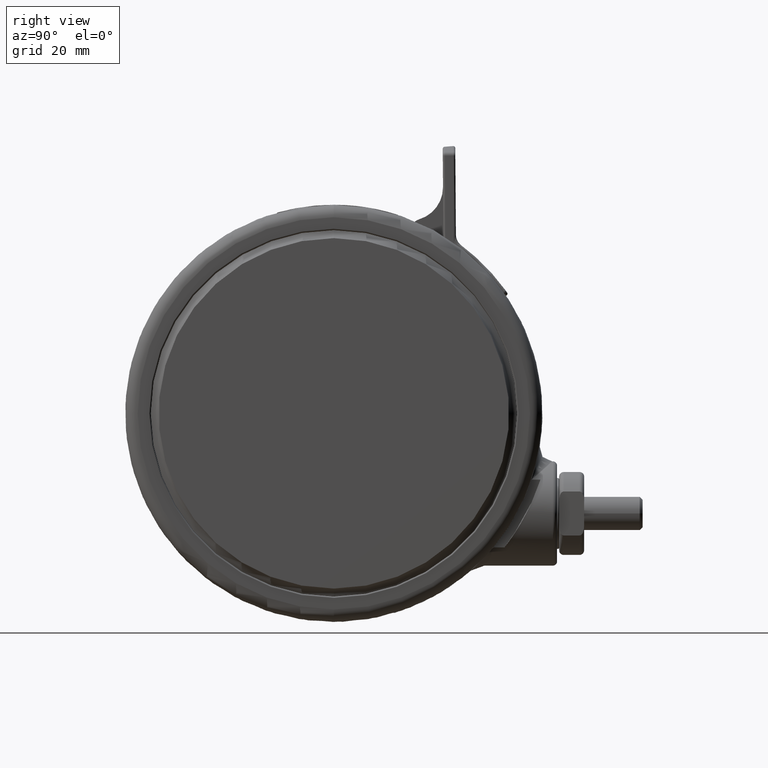
[diagram: clean part render]
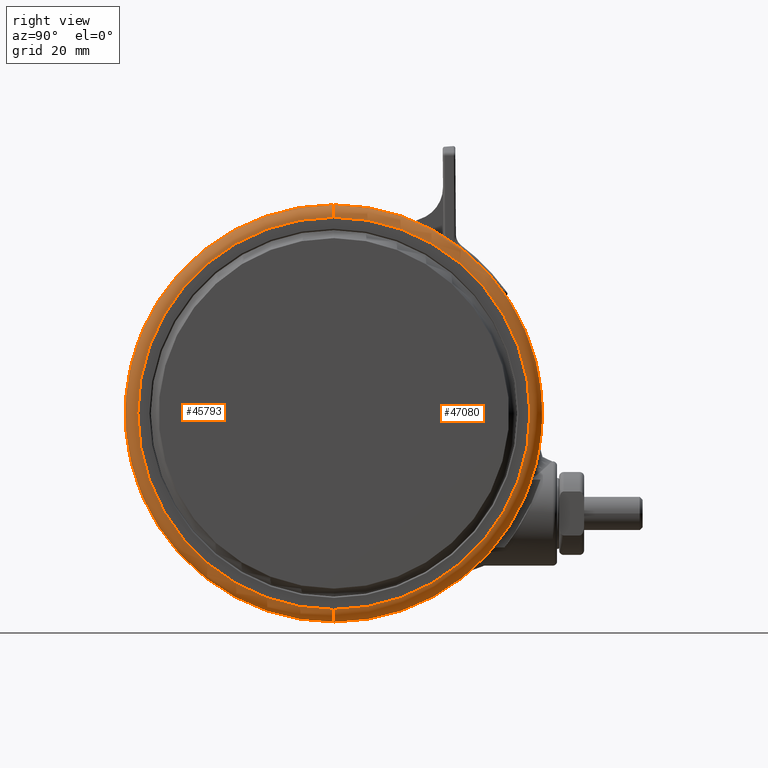
[diagram: same view with one multi-face feature highlighted, each face labeled with its STEP entity id]
A machine part, right view. The highlighted faces form ONE feature: a constant-radius fillet chain: 2 tangent blend faces with common blend radius 3 mm. The faces share edges in the B-rep.
Their STEP definitions:
[1] entity #47080 (Torus):
#1292 = DIRECTION ( 'NONE',  ( 1.000000000000000000, 1.509229262741580400E-016, -1.734723475976807100E-017 ) ) ;
#2541 = FACE_OUTER_BOUND ( 'NONE', #37555, .T. ) ;
#2886 = VERTEX_POINT ( 'NONE', #22910 ) ;
#5930 = CIRCLE ( 'NONE', #26868, 47.00000000000000000 ) ;
#8068 = DIRECTION ( 'NONE',  ( -2.126349141558171900E-017, -1.337754666183254700E-016, -1.000000000000000000 ) ) ;
#8136 = CARTESIAN_POINT ( 'NONE',  ( -47.00000000000001400, -1.151582041475614100E-014, -5.099999999999827300 ) ) ;
#9271 = CARTESIAN_POINT ( 'NONE',  ( 46.99999999999998600, 8.426774611007273000E-015, -5.099999999999829100 ) ) ;
#9528 = CARTESIAN_POINT ( 'NONE',  ( -1.387778780781445700E-014, 1.734723475976807100E-015, -2.099999999999938800 ) ) ;
#11946 = DIRECTION ( 'NONE',  ( 1.000000000000000000, 2.733876061888929400E-016, 0.0000000000000000000 ) ) ;
#12018 = CIRCLE ( 'NONE', #20941, 3.000000000000002700 ) ;
#13105 = DIRECTION ( 'NONE',  ( -1.000000000000000000, -1.509229262741580100E-016, 0.0000000000000000000 ) ) ;
#13363 = DIRECTION ( 'NONE',  ( 1.000000000000000000, 1.509229262741580100E-016, -1.845450506358305400E-017 ) ) ;
#14648 = VERTEX_POINT ( 'NONE', #35803 ) ;
#16893 = EDGE_CURVE ( 'NONE', #17087, #14648, #21951, .T. ) ;
#17087 = VERTEX_POINT ( 'NONE', #31935 ) ;
#19356 = CARTESIAN_POINT ( 'NONE',  ( -1.394157828206119900E-014, 1.333397076121845300E-015, -5.099999999999828200 ) ) ;
#20941 = AXIS2_PLACEMENT_3D ( 'NONE', #9271, #35710, #13105 ) ;
#21197 = CIRCLE ( 'NONE', #36047, 50.00000000000000000 ) ;
#21951 = CIRCLE ( 'NONE', #31886, 3.000000000000002700 ) ;
#22614 = TOROIDAL_SURFACE ( 'NONE', #25742, 47.00000000000000000, 3.000000000000000000 ) ;
#22910 = CARTESIAN_POINT ( 'NONE',  ( 46.99999999999998600, 8.828101010862234300E-015, -2.099999999999939700 ) ) ;
#23908 = DIRECTION ( 'NONE',  ( -2.126349141558171900E-017, -1.337754666183254700E-016, -1.000000000000000000 ) ) ;
#25742 = AXIS2_PLACEMENT_3D ( 'NONE', #19356, #8068, #38346 ) ;
#25926 = ORIENTED_EDGE ( 'NONE', *, *, #31596, .F. ) ;
#26868 = AXIS2_PLACEMENT_3D ( 'NONE', #9528, #35983, #13363 ) ;
#27930 = ORIENTED_EDGE ( 'NONE', *, *, #46309, .F. ) ;
#30270 = VERTEX_POINT ( 'NONE', #41262 ) ;
#31596 = EDGE_CURVE ( 'NONE', #17087, #2886, #5930, .T. ) ;
#31886 = AXIS2_PLACEMENT_3D ( 'NONE', #8136, #34595, #11946 ) ;
#31935 = CARTESIAN_POINT ( 'NONE',  ( -47.00000000000001400, -1.172523862411199300E-014, -2.099999999999937900 ) ) ;
#34595 = DIRECTION ( 'NONE',  ( 2.733876061888933300E-016, -1.000000000000000000, 1.337754666183254700E-016 ) ) ;
#35710 = DIRECTION ( 'NONE',  ( -1.509229262741580100E-016, 1.000000000000000000, -1.337754666183254700E-016 ) ) ;
#35803 = CARTESIAN_POINT ( 'NONE',  ( -50.00000000000001400, -1.233598323332281900E-014, -5.099999999999827300 ) ) ;
#35983 = DIRECTION ( 'NONE',  ( 2.126349141558171900E-017, 1.337754666183254700E-016, 1.000000000000000000 ) ) ;
#36047 = AXIS2_PLACEMENT_3D ( 'NONE', #46478, #23908, #1292 ) ;
#36453 = ORIENTED_EDGE ( 'NONE', *, *, #16893, .T. ) ;
#37555 = EDGE_LOOP ( 'NONE', ( #25926, #36453, #47812, #27930 ) ) ;
#38346 = DIRECTION ( 'NONE',  ( 1.000000000000000000, 1.509229262741580100E-016, -2.126349141558173700E-017 ) ) ;
#40573 = EDGE_CURVE ( 'NONE', #30270, #14648, #21197, .T. ) ;
#41262 = CARTESIAN_POINT ( 'NONE',  ( 49.99999999999998600, 8.879543389829747400E-015, -5.099999999999829100 ) ) ;
#46309 = EDGE_CURVE ( 'NONE', #2886, #30270, #12018, .T. ) ;
#46478 = CARTESIAN_POINT ( 'NONE',  ( -1.394157828206119900E-014, 1.333397076121845300E-015, -5.099999999999828200 ) ) ;
#47080 = ADVANCED_FACE ( 'NONE', ( #2541 ), #22614, .T. ) ;
#47812 = ORIENTED_EDGE ( 'NONE', *, *, #40573, .F. ) ;
[2] entity #45793 (Torus):
#1924 = CARTESIAN_POINT ( 'NONE',  ( -1.394157828206119900E-014, 1.333397076121845300E-015, -5.099999999999828200 ) ) ;
#2886 = VERTEX_POINT ( 'NONE', #22910 ) ;
#3474 = AXIS2_PLACEMENT_3D ( 'NONE', #9967, #36419, #13802 ) ;
#7458 = CIRCLE ( 'NONE', #46139, 47.00000000000000000 ) ;
#7546 = CIRCLE ( 'NONE', #3474, 50.00000000000000000 ) ;
#8136 = CARTESIAN_POINT ( 'NONE',  ( -47.00000000000001400, -1.151582041475614100E-014, -5.099999999999827300 ) ) ;
#9271 = CARTESIAN_POINT ( 'NONE',  ( 46.99999999999998600, 8.426774611007273000E-015, -5.099999999999829100 ) ) ;
#9494 = DIRECTION ( 'NONE',  ( -2.126349141558171900E-017, -1.337754666183254700E-016, -1.000000000000000000 ) ) ;
#9967 = CARTESIAN_POINT ( 'NONE',  ( -1.394157828206119900E-014, 1.333397076121845300E-015, -5.099999999999828200 ) ) ;
#10159 = AXIS2_PLACEMENT_3D ( 'NONE', #1924, #9494, #35952 ) ;
#10742 = EDGE_CURVE ( 'NONE', #14648, #30270, #7546, .T. ) ;
#11692 = EDGE_CURVE ( 'NONE', #2886, #17087, #7458, .T. ) ;
#11946 = DIRECTION ( 'NONE',  ( 1.000000000000000000, 2.733876061888929400E-016, 0.0000000000000000000 ) ) ;
#12018 = CIRCLE ( 'NONE', #20941, 3.000000000000002700 ) ;
#13105 = DIRECTION ( 'NONE',  ( -1.000000000000000000, -1.509229262741580100E-016, 0.0000000000000000000 ) ) ;
#13802 = DIRECTION ( 'NONE',  ( 1.000000000000000000, 1.509229262741580400E-016, -1.734723475976807100E-017 ) ) ;
#14503 = FACE_OUTER_BOUND ( 'NONE', #33918, .T. ) ;
#14648 = VERTEX_POINT ( 'NONE', #35803 ) ;
#15044 = ORIENTED_EDGE ( 'NONE', *, *, #46309, .T. ) ;
#15681 = TOROIDAL_SURFACE ( 'NONE', #10159, 47.00000000000000000, 3.000000000000000000 ) ;
#16893 = EDGE_CURVE ( 'NONE', #17087, #14648, #21951, .T. ) ;
#17087 = VERTEX_POINT ( 'NONE', #31935 ) ;
#19981 = ORIENTED_EDGE ( 'NONE', *, *, #10742, .F. ) ;
#20941 = AXIS2_PLACEMENT_3D ( 'NONE', #9271, #35710, #13105 ) ;
#21493 = DIRECTION ( 'NONE',  ( 2.126349141558171900E-017, 1.337754666183254700E-016, 1.000000000000000000 ) ) ;
#21951 = CIRCLE ( 'NONE', #31886, 3.000000000000002700 ) ;
#22910 = CARTESIAN_POINT ( 'NONE',  ( 46.99999999999998600, 8.828101010862234300E-015, -2.099999999999939700 ) ) ;
#30270 = VERTEX_POINT ( 'NONE', #41262 ) ;
#31886 = AXIS2_PLACEMENT_3D ( 'NONE', #8136, #34595, #11946 ) ;
#31935 = CARTESIAN_POINT ( 'NONE',  ( -47.00000000000001400, -1.172523862411199300E-014, -2.099999999999937900 ) ) ;
#32315 = ORIENTED_EDGE ( 'NONE', *, *, #16893, .F. ) ;
#32390 = ORIENTED_EDGE ( 'NONE', *, *, #11692, .F. ) ;
#33918 = EDGE_LOOP ( 'NONE', ( #32315, #32390, #15044, #19981 ) ) ;
#34595 = DIRECTION ( 'NONE',  ( 2.733876061888933300E-016, -1.000000000000000000, 1.337754666183254700E-016 ) ) ;
#35710 = DIRECTION ( 'NONE',  ( -1.509229262741580100E-016, 1.000000000000000000, -1.337754666183254700E-016 ) ) ;
#35803 = CARTESIAN_POINT ( 'NONE',  ( -50.00000000000001400, -1.233598323332281900E-014, -5.099999999999827300 ) ) ;
#35952 = DIRECTION ( 'NONE',  ( 1.000000000000000000, 1.509229262741580100E-016, -2.126349141558173700E-017 ) ) ;
#36419 = DIRECTION ( 'NONE',  ( -2.126349141558171900E-017, -1.337754666183254700E-016, -1.000000000000000000 ) ) ;
#41262 = CARTESIAN_POINT ( 'NONE',  ( 49.99999999999998600, 8.879543389829747400E-015, -5.099999999999829100 ) ) ;
#44078 = CARTESIAN_POINT ( 'NONE',  ( -1.387778780781445700E-014, 1.734723475976807100E-015, -2.099999999999938800 ) ) ;
#45793 = ADVANCED_FACE ( 'NONE', ( #14503 ), #15681, .T. ) ;
#46139 = AXIS2_PLACEMENT_3D ( 'NONE', #44078, #21493, #47883 ) ;
#46309 = EDGE_CURVE ( 'NONE', #2886, #30270, #12018, .T. ) ;
#47883 = DIRECTION ( 'NONE',  ( 1.000000000000000000, 1.509229262741580100E-016, -1.845450506358305400E-017 ) ) ;